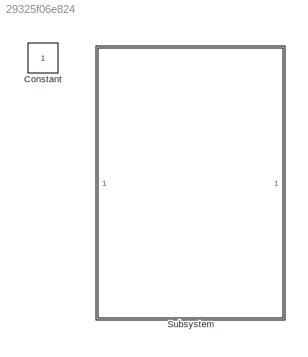
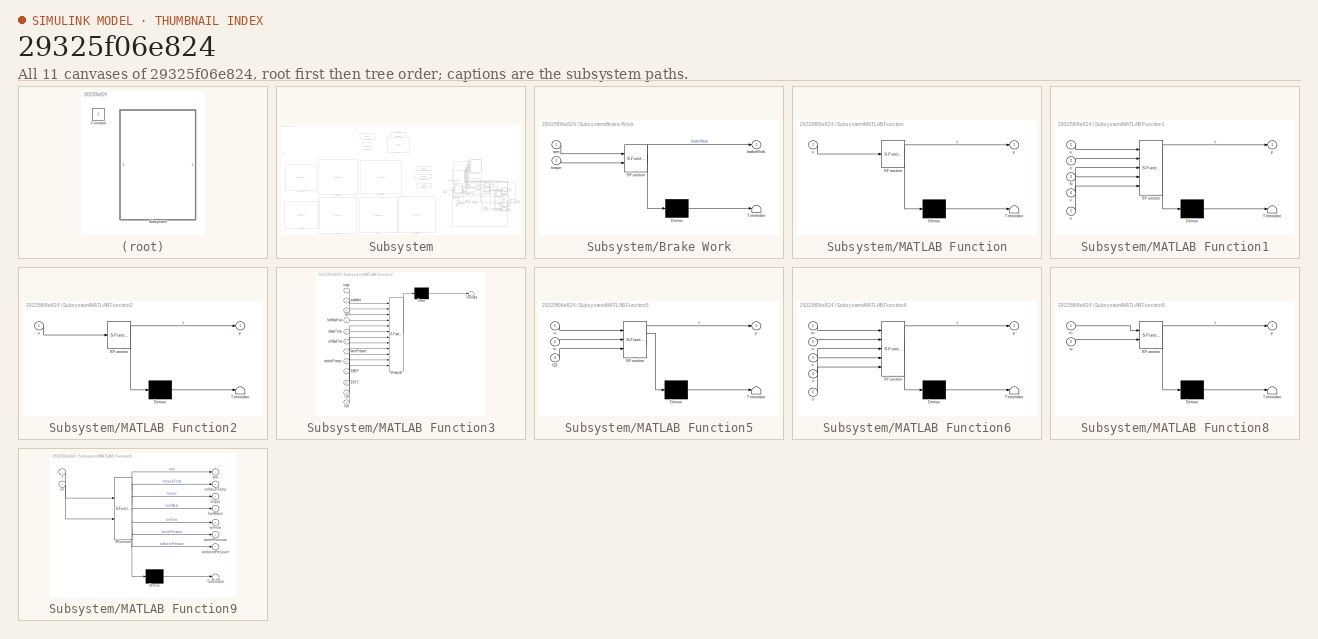
[diagram: thumbnail index - all 11 canvases of the model, root first then tree order]
MODEL slx_29325f06e824
KIND model
CONFIG AbsTol = auto
CONFIG EnableMultiTasking = off
CONFIG FixedStep = auto
CONFIG MaxStep = auto
CONFIG MinStep = auto
CONFIG RelTol = 1e-3
CONFIG SampleTimeConstraint = Unconstrained
CONFIG SolverName = VariableStepAuto
CONFIG StartTime = 0.0
CONFIG StopTime = inf
BLOCK [Constant] Constant
  IOType = siggen
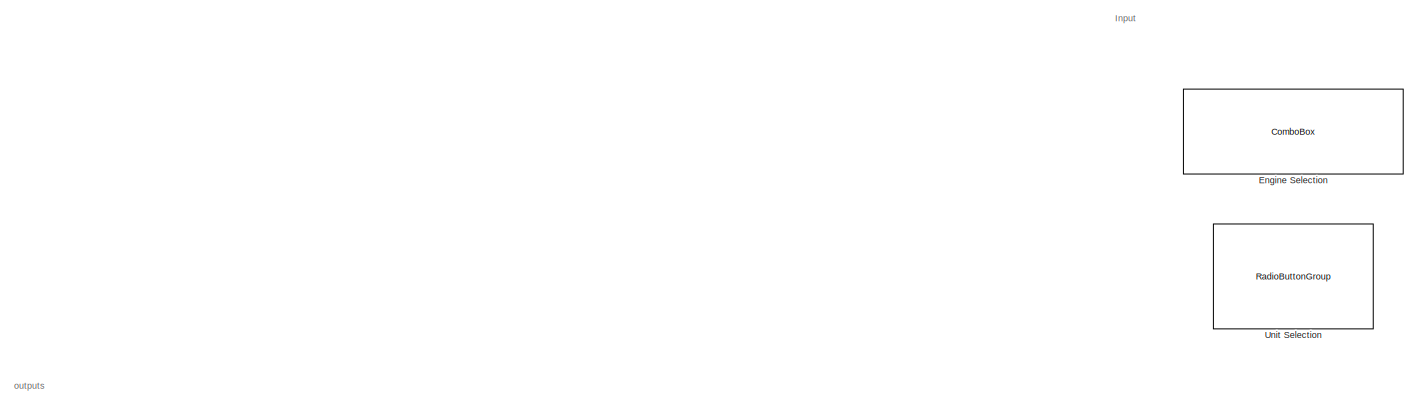
[diagram: Subsystem - part 1/6, top left region]
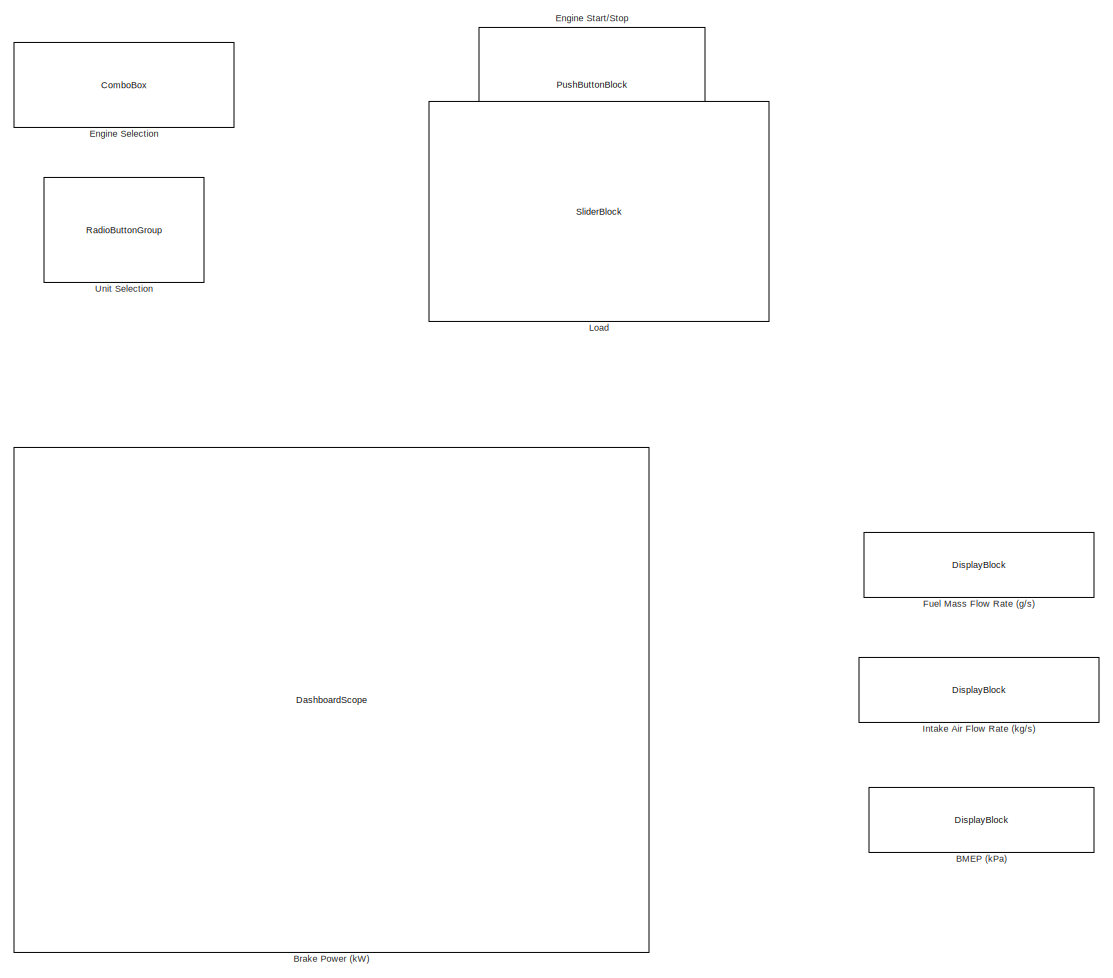
[diagram: Subsystem - part 2/6, central region]
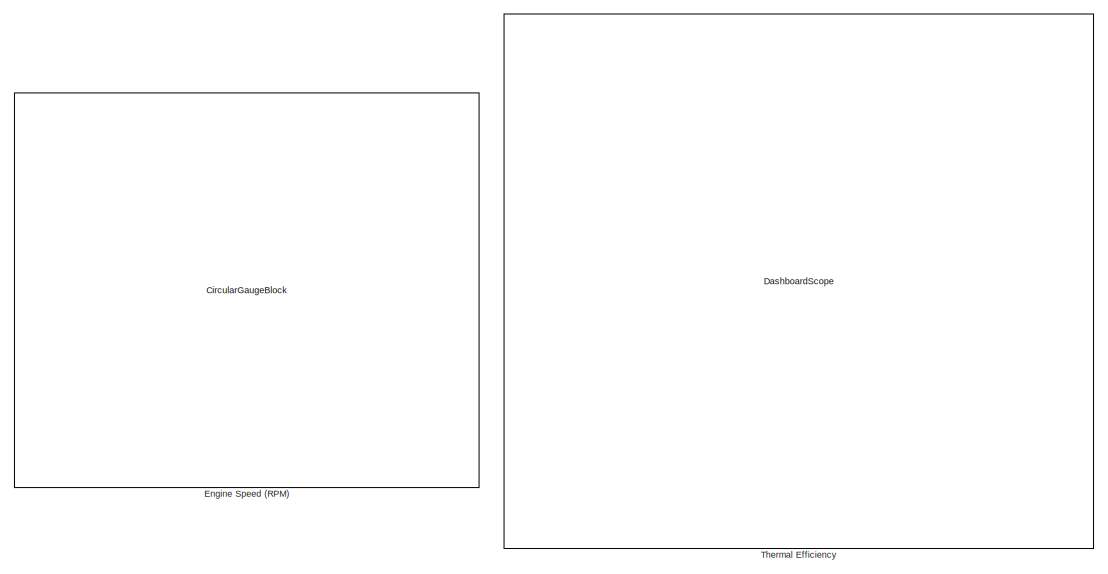
[diagram: Subsystem - part 3/6, middle left region]
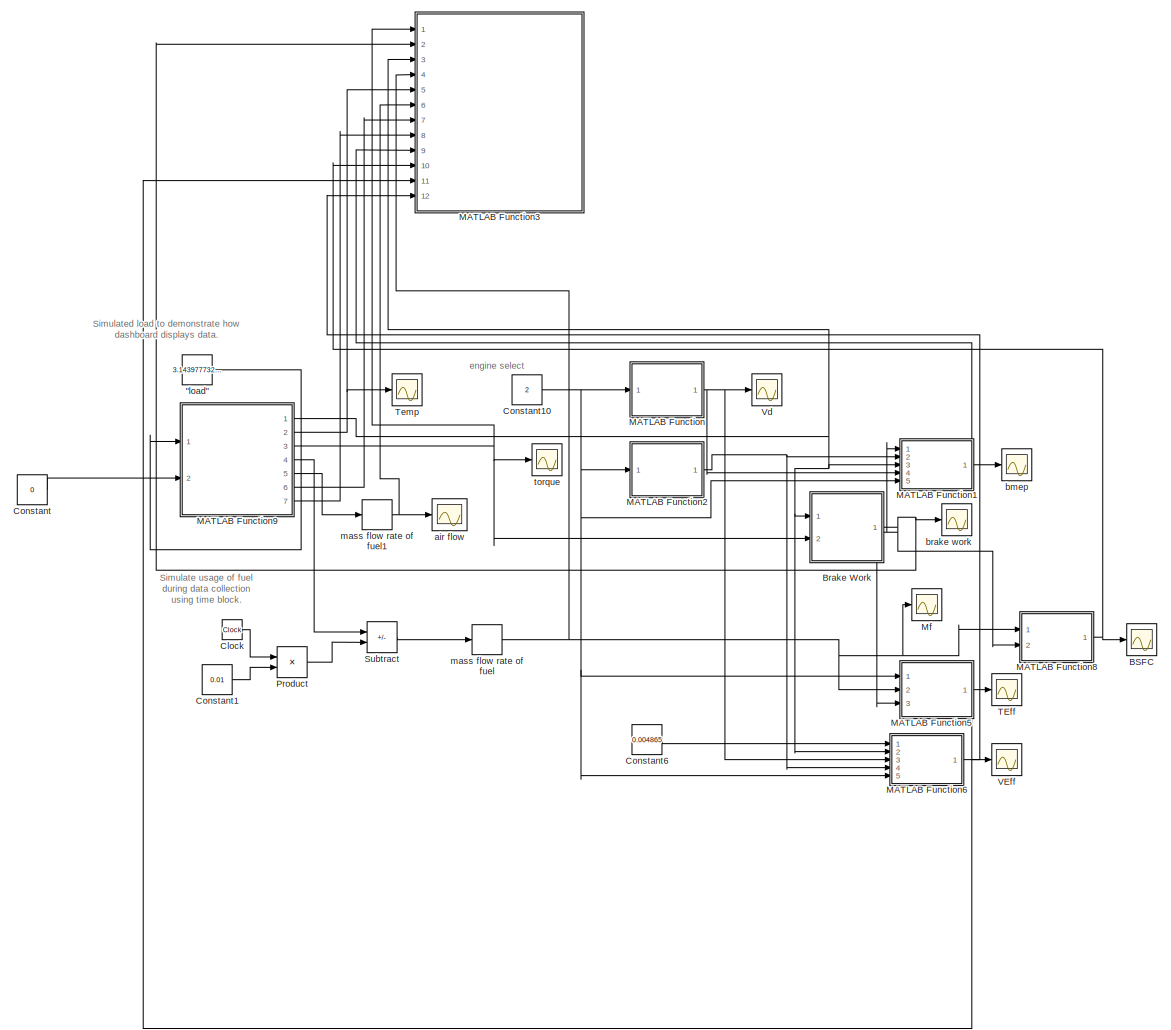
[diagram: Subsystem - part 4/6, middle right region]
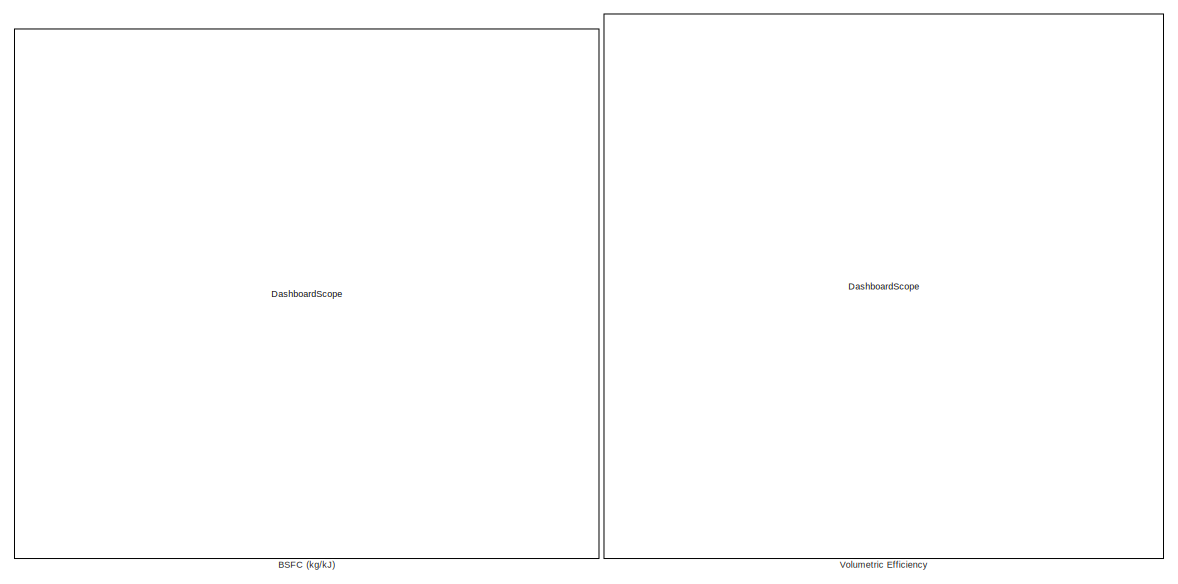
[diagram: Subsystem - part 5/6, bottom center region]
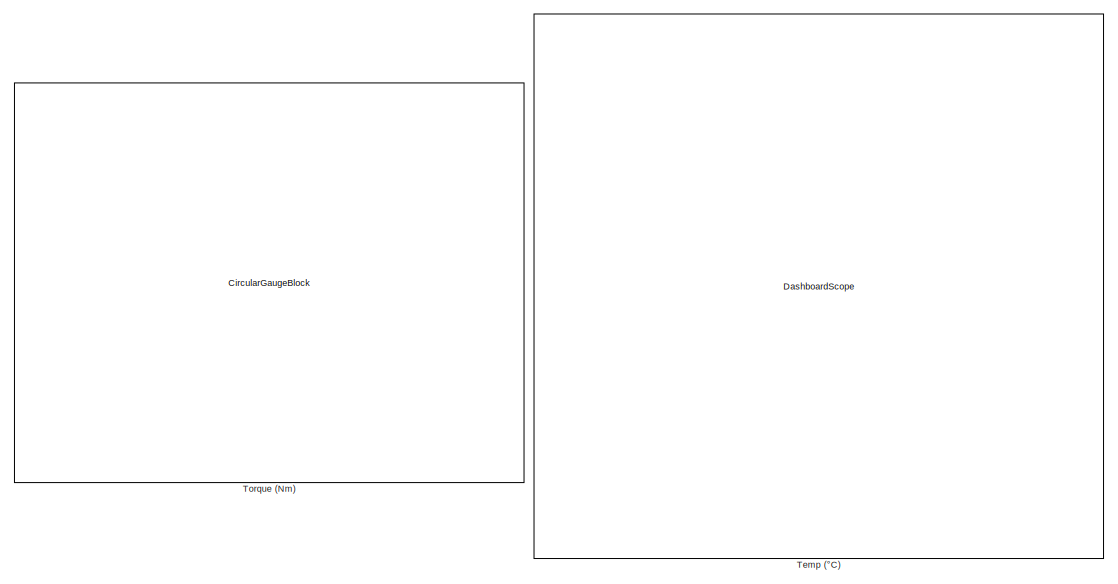
[diagram: Subsystem - part 6/6, bottom left region]
BLOCK [SubSystem] Subsystem
  Ports = []
  RequestExecContextInheritance = off
BLOCK [Constant] Subsystem/"load"
  Value = 3.143977732793522
BLOCK [DisplayBlock] Subsystem/BMEP (kPa)
  LabelPosition = Hide
  NameLocation = top
  Transparency = 1
BLOCK [Scope] Subsystem/BSFC
  Floating = off
  NumInputPorts = 1
  Ports = [1]
  ScopeSpecificationString = Simulink.scopes.TimeScopeBlockCfg('CurrentConfiguration', extmgr.ConfigurationSet(extmgr.Configuration('Core','General UI',true),extmgr.Configuration('Core','Source UI',true),extmgr.Configuration('Sources','WiredSimulink',true),extmgr.Configuration('Visuals','Time Domain',true,'SerializedDisplays',{struct('MinYLimReal','578.63218','MaxYLimReal','778.63218','YLabelReal','','MinYLimMag','578.63218',...<+1350ch>
BLOCK [DashboardScope] Subsystem/BSFC (kg//kJ)
  NameLocation = top
BLOCK [DashboardScope] Subsystem/Brake Power (kW)
  NameLocation = top
BLOCK [SubSystem] Subsystem/Brake Work
  ErrorFcn = Stateflow.Translate.translate
  PermitHierarchicalResolution = ExplicitOnly
  Ports = [2, 1]
  RequestExecContextInheritance = off
  SFBlockType = MATLAB Function
  TreatAsAtomicUnit = on
BLOCK [Demux] Subsystem/Brake Work/ Demux 
  Outputs = 1
  Ports = [1, 1]
BLOCK [S-Function] Subsystem/Brake Work/ SFunction 
  EnableBusSupport = on
  FunctionName = sf_sfun
  PortCounts = [2 2]
  Ports = [2, 2]
  SFcnIsStateOwnerBlock = off
  SFunctionDeploymentMode = off
  Tag = Stateflow S-Function 4
BLOCK [Terminator] Subsystem/Brake Work/ Terminator 
BLOCK [Outport] Subsystem/Brake Work/brakeWork
BLOCK [Inport] Subsystem/Brake Work/rpm
BLOCK [Inport] Subsystem/Brake Work/torque
  Port = 2
BLOCK [Clock] Subsystem/Clock
BLOCK [Constant] Subsystem/Constant
  Value = 0
BLOCK [Constant] Subsystem/Constant1
  Value = 0.01
BLOCK [Constant] Subsystem/Constant10
  Value = 2
BLOCK [Constant] Subsystem/Constant6
  Value = 0.004865
BLOCK [ComboBox] Subsystem/Engine Selection
  LabelPosition = Hide
  NameLocation = top
  SelectedLabel = Craftsman
BLOCK [CircularGaugeBlock] Subsystem/Engine Speed (RPM)
  LabelPosition = Hide
  NameLocation = top
  ScaleMax = 7000
BLOCK [PushButtonBlock] Subsystem/Engine Start//Stop
  ButtonText = Start/Stop
  ButtonType = Latch
  Icon = Engine
  IconAlignment = Center
  IconColor = On
  NameLocation = top
  OffValue = 0.000000
BLOCK [DisplayBlock] Subsystem/Fuel Mass Flow Rate (g//s)
  LabelPosition = Hide
  NameLocation = top
  Transparency = 1
BLOCK [DisplayBlock] Subsystem/Intake Air Flow Rate (kg//s)
  LabelPosition = Hide
  NameLocation = top
  Transparency = 1
BLOCK [SliderBlock] Subsystem/Load
  LabelPosition = Hide
BLOCK [SubSystem] Subsystem/MATLAB Function
  ErrorFcn = Stateflow.Translate.translate
  PermitHierarchicalResolution = ExplicitOnly
  Ports = [1, 1]
  RequestExecContextInheritance = off
  SFBlockType = MATLAB Function
  TreatAsAtomicUnit = on
BLOCK [Demux] Subsystem/MATLAB Function/ Demux 
  Outputs = 1
  Ports = [1, 1]
BLOCK [S-Function] Subsystem/MATLAB Function/ SFunction 
  EnableBusSupport = on
  FunctionName = sf_sfun
  PortCounts = [1 2]
  Ports = [1, 2]
  SFcnIsStateOwnerBlock = off
  SFunctionDeploymentMode = off
  Tag = Stateflow S-Function 2
BLOCK [Terminator] Subsystem/MATLAB Function/ Terminator 
BLOCK [Inport] Subsystem/MATLAB Function/u
BLOCK [Outport] Subsystem/MATLAB Function/y
BLOCK [SubSystem] Subsystem/MATLAB Function1
  ErrorFcn = Stateflow.Translate.translate
  PermitHierarchicalResolution = ExplicitOnly
  Ports = [5, 1]
  RequestExecContextInheritance = off
  SFBlockType = MATLAB Function
  TreatAsAtomicUnit = on
BLOCK [Demux] Subsystem/MATLAB Function1/ Demux 
  Outputs = 1
  Ports = [1, 1]
BLOCK [S-Function] Subsystem/MATLAB Function1/ SFunction 
  EnableBusSupport = on
  FunctionName = sf_sfun
  PortCounts = [5 2]
  Ports = [5, 2]
  SFcnIsStateOwnerBlock = off
  SFunctionDeploymentMode = off
  Tag = Stateflow S-Function 1
BLOCK [Terminator] Subsystem/MATLAB Function1/ Terminator 
BLOCK [Inport] Subsystem/MATLAB Function1/N
  Port = 3
BLOCK [Inport] Subsystem/MATLAB Function1/n
  Port = 2
BLOCK [Inport] Subsystem/MATLAB Function1/o
  Port = 5
BLOCK [Inport] Subsystem/MATLAB Function1/u
BLOCK [Inport] Subsystem/MATLAB Function1/v
  Port = 4
BLOCK [Outport] Subsystem/MATLAB Function1/y
BLOCK [SubSystem] Subsystem/MATLAB Function2
  ErrorFcn = Stateflow.Translate.translate
  PermitHierarchicalResolution = ExplicitOnly
  Ports = [1, 1]
  RequestExecContextInheritance = off
  SFBlockType = MATLAB Function
  TreatAsAtomicUnit = on
BLOCK [Demux] Subsystem/MATLAB Function2/ Demux 
  Outputs = 1
  Ports = [1, 1]
BLOCK [S-Function] Subsystem/MATLAB Function2/ SFunction 
  EnableBusSupport = on
  FunctionName = sf_sfun
  PortCounts = [1 2]
  Ports = [1, 2]
  SFcnIsStateOwnerBlock = off
  SFunctionDeploymentMode = off
  Tag = Stateflow S-Function 3
BLOCK [Terminator] Subsystem/MATLAB Function2/ Terminator 
BLOCK [Inport] Subsystem/MATLAB Function2/u
BLOCK [Outport] Subsystem/MATLAB Function2/y
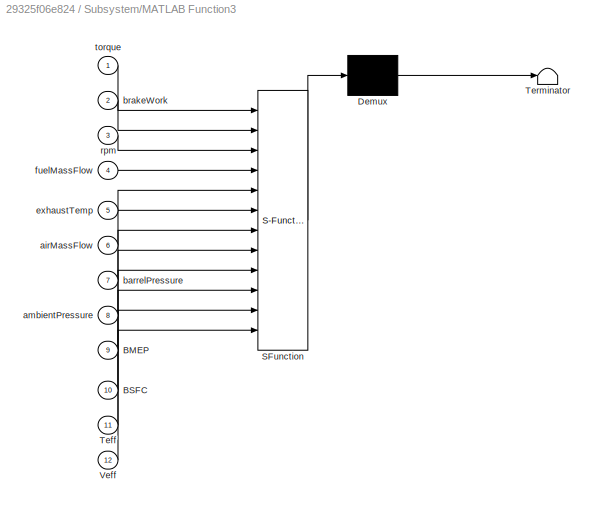
BLOCK [SubSystem] Subsystem/MATLAB Function3
  ErrorFcn = Stateflow.Translate.translate
  PermitHierarchicalResolution = ExplicitOnly
  Ports = [12]
  RequestExecContextInheritance = off
  SFBlockType = MATLAB Function
  SystemSampleTime = 1
  TreatAsAtomicUnit = on
BLOCK [Demux] Subsystem/MATLAB Function3/ Demux 
  Outputs = 1
  Ports = [1, 1]
BLOCK [S-Function] Subsystem/MATLAB Function3/ SFunction 
  EnableBusSupport = on
  FunctionName = sf_sfun
  PortCounts = [12 1]
  Ports = [12, 1]
  SFcnIsStateOwnerBlock = off
  SFunctionDeploymentMode = off
  Tag = Stateflow S-Function 11
BLOCK [Terminator] Subsystem/MATLAB Function3/ Terminator 
BLOCK [Inport] Subsystem/MATLAB Function3/BMEP
  Port = 9
BLOCK [Inport] Subsystem/MATLAB Function3/BSFC
  Port = 10
BLOCK [Inport] Subsystem/MATLAB Function3/Teff
  Port = 11
BLOCK [Inport] Subsystem/MATLAB Function3/Veff
  Port = 12
BLOCK [Inport] Subsystem/MATLAB Function3/airMassFlow
  Port = 6
BLOCK [Inport] Subsystem/MATLAB Function3/ambientPressure
  Port = 8
BLOCK [Inport] Subsystem/MATLAB Function3/barrelPressure
  Port = 7
BLOCK [Inport] Subsystem/MATLAB Function3/brakeWork
  Port = 2
BLOCK [Inport] Subsystem/MATLAB Function3/exhaustTemp
  Port = 5
BLOCK [Inport] Subsystem/MATLAB Function3/fuelMassFlow
  Port = 4
BLOCK [Inport] Subsystem/MATLAB Function3/rpm
  Port = 3
BLOCK [Inport] Subsystem/MATLAB Function3/torque
BLOCK [SubSystem] Subsystem/MATLAB Function5
  ErrorFcn = Stateflow.Translate.translate
  PermitHierarchicalResolution = ExplicitOnly
  Ports = [3, 1]
  RequestExecContextInheritance = off
  SFBlockType = MATLAB Function
  TreatAsAtomicUnit = on
BLOCK [Demux] Subsystem/MATLAB Function5/ Demux 
  Outputs = 1
  Ports = [1, 1]
BLOCK [S-Function] Subsystem/MATLAB Function5/ SFunction 
  EnableBusSupport = on
  FunctionName = sf_sfun
  PortCounts = [3 2]
  Ports = [3, 2]
  SFcnIsStateOwnerBlock = off
  SFunctionDeploymentMode = off
  Tag = Stateflow S-Function 6
BLOCK [Terminator] Subsystem/MATLAB Function5/ Terminator 
BLOCK [Inport] Subsystem/MATLAB Function5/Q2
  Port = 3
BLOCK [Inport] Subsystem/MATLAB Function5/m
  Port = 2
BLOCK [Inport] Subsystem/MATLAB Function5/u
BLOCK [Outport] Subsystem/MATLAB Function5/y
BLOCK [SubSystem] Subsystem/MATLAB Function6
  ErrorFcn = Stateflow.Translate.translate
  PermitHierarchicalResolution = ExplicitOnly
  Ports = [5, 1]
  RequestExecContextInheritance = off
  SFBlockType = MATLAB Function
  TreatAsAtomicUnit = on
BLOCK [Demux] Subsystem/MATLAB Function6/ Demux 
  Outputs = 1
  Ports = [1, 1]
BLOCK [S-Function] Subsystem/MATLAB Function6/ SFunction 
  EnableBusSupport = on
  FunctionName = sf_sfun
  PortCounts = [5 2]
  Ports = [5, 2]
  SFcnIsStateOwnerBlock = off
  SFunctionDeploymentMode = off
  Tag = Stateflow S-Function 7
BLOCK [Terminator] Subsystem/MATLAB Function6/ Terminator 
BLOCK [Inport] Subsystem/MATLAB Function6/m
BLOCK [Inport] Subsystem/MATLAB Function6/n
  Port = 2
BLOCK [Inport] Subsystem/MATLAB Function6/o
  Port = 5
BLOCK [Inport] Subsystem/MATLAB Function6/s
  Port = 4
BLOCK [Inport] Subsystem/MATLAB Function6/v
  Port = 3
BLOCK [Outport] Subsystem/MATLAB Function6/y
BLOCK [SubSystem] Subsystem/MATLAB Function8
  ErrorFcn = Stateflow.Translate.translate
  PermitHierarchicalResolution = ExplicitOnly
  Ports = [2, 1]
  RequestExecContextInheritance = off
  SFBlockType = MATLAB Function
  TreatAsAtomicUnit = on
BLOCK [Demux] Subsystem/MATLAB Function8/ Demux 
  Outputs = 1
  Ports = [1, 1]
BLOCK [S-Function] Subsystem/MATLAB Function8/ SFunction 
  EnableBusSupport = on
  FunctionName = sf_sfun
  PortCounts = [2 2]
  Ports = [2, 2]
  SFcnIsStateOwnerBlock = off
  SFunctionDeploymentMode = off
  Tag = Stateflow S-Function 9
BLOCK [Terminator] Subsystem/MATLAB Function8/ Terminator 
BLOCK [Inport] Subsystem/MATLAB Function8/m
BLOCK [Inport] Subsystem/MATLAB Function8/w
  Port = 2
BLOCK [Outport] Subsystem/MATLAB Function8/y
BLOCK [SubSystem] Subsystem/MATLAB Function9
  ErrorFcn = Stateflow.Translate.translate
  PermitHierarchicalResolution = ExplicitOnly
  Ports = [2, 7]
  RequestExecContextInheritance = off
  SFBlockType = MATLAB Function
  TreatAsAtomicUnit = on
BLOCK [Demux] Subsystem/MATLAB Function9/ Demux 
  Outputs = 1
  Ports = [1, 1]
BLOCK [S-Function] Subsystem/MATLAB Function9/ SFunction 
  EnableBusSupport = on
  FunctionName = sf_sfun
  PortCounts = [2 8]
  Ports = [2, 8]
  SFcnIsStateOwnerBlock = off
  SFunctionDeploymentMode = off
  Tag = Stateflow S-Function 10
BLOCK [Terminator] Subsystem/MATLAB Function9/ Terminator 
BLOCK [Outport] Subsystem/MATLAB Function9/airFlow
  Port = 5
BLOCK [Outport] Subsystem/MATLAB Function9/ambientPressure
  Port = 7
BLOCK [Outport] Subsystem/MATLAB Function9/barrelPressure
  Port = 6
BLOCK [Outport] Subsystem/MATLAB Function9/exhaustTemp
  Port = 2
BLOCK [Outport] Subsystem/MATLAB Function9/fuelMass
  Port = 4
BLOCK [Inport] Subsystem/MATLAB Function9/on
  Port = 2
BLOCK [Outport] Subsystem/MATLAB Function9/rpm
BLOCK [Inport] Subsystem/MATLAB Function9/t
BLOCK [Outport] Subsystem/MATLAB Function9/torque
  Port = 3
BLOCK [Scope] Subsystem/Mf
  Floating = off
  NumInputPorts = 1
  Ports = [1]
  ScopeSpecificationString = Simulink.scopes.TimeScopeBlockCfg('CurrentConfiguration', extmgr.ConfigurationSet(extmgr.Configuration('Core','General UI',true),extmgr.Configuration('Core','Source UI',true),extmgr.Configuration('Sources','WiredSimulink',true,'DataLoggingVariableName','ScopeData4'),extmgr.Configuration('Visuals','Time Domain',true,'SerializedDisplays',{struct('MinYLimReal','-0.01125','MaxYLimReal','0.00125','YLab...<+1381ch>
BLOCK [Product] Subsystem/Product
  Ports = [2, 1]
BLOCK [Sum] Subsystem/Subtract
  IconShape = rectangular
  Inputs = +-
  Ports = [2, 1]
BLOCK [Scope] Subsystem/TEff
  Floating = off
  NumInputPorts = 1
  Ports = [1]
  ScopeSpecificationString = Simulink.scopes.TimeScopeBlockCfg('CurrentConfiguration', extmgr.ConfigurationSet(extmgr.Configuration('Core','General UI',true),extmgr.Configuration('Core','Source UI',true),extmgr.Configuration('Sources','WiredSimulink',true,'DataLoggingVariableName','ScopeData5'),extmgr.Configuration('Visuals','Time Domain',true,'SerializedDisplays',{struct('MinYLimReal','4.91849','MaxYLimReal','6.91849','YLabe...<+1373ch>
BLOCK [Scope] Subsystem/Temp
  Floating = off
  NumInputPorts = 1
  Ports = [1]
  ScopeSpecificationString = Simulink.scopes.TimeScopeBlockCfg('CurrentConfiguration', extmgr.ConfigurationSet(extmgr.Configuration('Core','General UI',true),extmgr.Configuration('Core','Source UI',true),extmgr.Configuration('Sources','WiredSimulink',true,'DataLoggingVariableName','ScopeData1'),extmgr.Configuration('Visuals','Time Domain',true),extmgr.Configuration('Tools','Plot Navigation',true),extmgr.Configuration('Tools',...<+40ch>
BLOCK [DashboardScope] Subsystem/Temp (°C)
  NameLocation = top
BLOCK [DashboardScope] Subsystem/Thermal Efficiency
  NameLocation = top
BLOCK [CircularGaugeBlock] Subsystem/Torque (Nm)
  LabelPosition = Hide
  NameLocation = top
  TickInterval = 5
BLOCK [RadioButtonGroup] Subsystem/Unit Selection
  ButtonGroupName = Units
  LabelPosition = Hide
  SelectedLabel = Metric
BLOCK [Scope] Subsystem/VEff
  Floating = off
  NumInputPorts = 1
  Ports = [1]
  ScopeSpecificationString = Simulink.scopes.TimeScopeBlockCfg('CurrentConfiguration', extmgr.ConfigurationSet(extmgr.Configuration('Core','General UI',true),extmgr.Configuration('Core','Source UI',true),extmgr.Configuration('Sources','WiredSimulink',true,'DataLoggingVariableName','ScopeData6'),extmgr.Configuration('Visuals','Time Domain',true,'SerializedDisplays',{struct('MinYLimReal','1.73245','MaxYLimReal','3.73245','YLabe...<+1373ch>
BLOCK [Scope] Subsystem/Vd
  Floating = off
  NumInputPorts = 1
  Ports = [1]
  ScopeSpecificationString = Simulink.scopes.TimeScopeBlockCfg('CurrentConfiguration', extmgr.ConfigurationSet(extmgr.Configuration('Core','General UI',true),extmgr.Configuration('Core','Source UI',true),extmgr.Configuration('Sources','WiredSimulink',true,'DataLoggingVariableName','ScopeData1'),extmgr.Configuration('Visuals','Time Domain',true,'SerializedDisplays',{struct('MinYLimReal','0.0002','MaxYLimReal','0.0004','YLabelR...<+1364ch>
BLOCK [DashboardScope] Subsystem/Volumetric Efficiency
  NameLocation = top
BLOCK [Scope] Subsystem/air flow
  Floating = off
  NumInputPorts = 1
  Ports = [1]
  ScopeSpecificationString = Simulink.scopes.TimeScopeBlockCfg('CurrentConfiguration', extmgr.ConfigurationSet(extmgr.Configuration('Core','General UI',true),extmgr.Configuration('Core','Source UI',true),extmgr.Configuration('Sources','WiredSimulink',true,'DataLoggingVariableName','ScopeData3'),extmgr.Configuration('Visuals','Time Domain',true,'SerializedDisplays',{struct('MinYLimReal','578.63218','MaxYLimReal','778.63218','Y...<+1389ch>
BLOCK [Scope] Subsystem/bmep
  Floating = off
  NumInputPorts = 1
  Ports = [1]
  ScopeSpecificationString = Simulink.scopes.TimeScopeBlockCfg('CurrentConfiguration', extmgr.ConfigurationSet(extmgr.Configuration('Core','General UI',true),extmgr.Configuration('Core','Source UI',true),extmgr.Configuration('Sources','WiredSimulink',true,'DataLoggingVariableName','ScopeData2'),extmgr.Configuration('Visuals','Time Domain',true,'SerializedDisplays',{struct('MinYLimReal','85.86103','MaxYLimReal','105.86103','YL...<+1385ch>
BLOCK [Scope] Subsystem/brake work
  Floating = off
  NumInputPorts = 1
  Ports = [1]
  ScopeSpecificationString = Simulink.scopes.TimeScopeBlockCfg('CurrentConfiguration', extmgr.ConfigurationSet(extmgr.Configuration('Core','General UI',true),extmgr.Configuration('Core','Source UI',true),extmgr.Configuration('Sources','WiredSimulink',true,'DataLoggingVariableName','ScopeData3'),extmgr.Configuration('Visuals','Time Domain',true,'SerializedDisplays',{struct('MinYLimReal','578.63218','MaxYLimReal','778.63218','Y...<+1389ch>
BLOCK [Derivative] Subsystem/mass flow rate of fuel
BLOCK [Derivative] Subsystem/mass flow rate of fuel1
BLOCK [Scope] Subsystem/torque
  Floating = off
  NumInputPorts = 1
  Ports = [1]
  ScopeSpecificationString = Simulink.scopes.TimeScopeBlockCfg('CurrentConfiguration', extmgr.ConfigurationSet(extmgr.Configuration('Core','General UI',true),extmgr.Configuration('Core','Source UI',true),extmgr.Configuration('Sources','WiredSimulink',true,'DataLoggingVariableName','ScopeData2'),extmgr.Configuration('Visuals','Time Domain',true,'SerializedDisplays',{struct('MinYLimReal','578.63218','MaxYLimReal','778.63218','Y...<+1389ch>
ANNOTATION Subsystem: Simulate usage of fuel during data collection using time block.
ANNOTATION Subsystem: Input
ANNOTATION Subsystem: Simulated load to demonstrate how dashboard displays data.
ANNOTATION Subsystem: engine select
ANNOTATION Subsystem: outputs
LINE Subsystem/"load":1 -> Subsystem/MATLAB Function9:1
NET Subsystem/Brake Work:1 -> Subsystem/MATLAB Function1:1, Subsystem/MATLAB Function3:2, Subsystem/MATLAB Function5:3, Subsystem/MATLAB Function8:2, Subsystem/brake work:1
LINE Subsystem/Clock:1 -> Subsystem/Product:1
NET Subsystem/Constant10:1 -> Subsystem/MATLAB Function1:5, Subsystem/MATLAB Function2:1, Subsystem/MATLAB Function5:1, Subsystem/MATLAB Function6:5, Subsystem/MATLAB Function:1
LINE Subsystem/Constant1:1 -> Subsystem/Product:2
LINE Subsystem/Constant6:1 -> Subsystem/MATLAB Function6:1
LINE Subsystem/Constant:1 -> Subsystem/MATLAB Function9:2
NET Subsystem/MATLAB Function1:1 -> Subsystem/MATLAB Function3:9, Subsystem/bmep:1
NET Subsystem/MATLAB Function2:1 -> Subsystem/MATLAB Function1:2, Subsystem/MATLAB Function6:4
NET Subsystem/MATLAB Function5:1 -> Subsystem/MATLAB Function3:11, Subsystem/TEff:1
NET Subsystem/MATLAB Function6:1 -> Subsystem/MATLAB Function3:12, Subsystem/VEff:1
NET Subsystem/MATLAB Function8:1 -> Subsystem/BSFC:1, Subsystem/MATLAB Function3:10
NET Subsystem/MATLAB Function9:1 -> Subsystem/Brake Work:1, Subsystem/MATLAB Function1:3, Subsystem/MATLAB Function3:3, Subsystem/MATLAB Function6:2
NET Subsystem/MATLAB Function9:2 -> Subsystem/MATLAB Function3:5, Subsystem/Temp:1
NET Subsystem/MATLAB Function9:3 -> Subsystem/Brake Work:2, Subsystem/MATLAB Function3:1, Subsystem/torque:1
LINE Subsystem/MATLAB Function9:4 -> Subsystem/Subtract:1
LINE Subsystem/MATLAB Function9:5 -> Subsystem/mass flow rate of fuel1:1
LINE Subsystem/MATLAB Function9:6 -> Subsystem/MATLAB Function3:7
LINE Subsystem/MATLAB Function9:7 -> Subsystem/MATLAB Function3:8
NET Subsystem/MATLAB Function:1 -> Subsystem/MATLAB Function1:4, Subsystem/MATLAB Function6:3, Subsystem/Vd:1
LINE Subsystem/Product:1 -> Subsystem/Subtract:2
LINE Subsystem/Subtract:1 -> Subsystem/mass flow rate of fuel:1
NET Subsystem/mass flow rate of fuel1:1 -> Subsystem/MATLAB Function3:6, Subsystem/air flow:1
NET Subsystem/mass flow rate of fuel:1 -> Subsystem/MATLAB Function3:4, Subsystem/MATLAB Function5:2, Subsystem/MATLAB Function8:1, Subsystem/Mf:1
note: NET lines group one-source signal fan-out (src -> all destinations, sorted); 1:1 wires keep LINE
CHART Subsystem/MATLAB Function3 states=1 transitions=1
  STATE_LABEL 'eML_blk_kernel()'
  STATE_LABEL "SCRIPT:\n% log file generation - currently overwrites each run\n% \\r\\n used for windows line termination style CRLF - switch to just \\n if\n% using unix like system\nfunction fileOutput(torque,brakeWork,rpm,fuelMassFlow,exhaustTemp,airMassFlow,barrelPressure,ambientPressure,BMEP,BSFC,Teff,Veff)\n\nfile = fopen('~/output-file.txt','w');\nfprintf(file,'%.3f,%.3f,%.3f,%.3f,%.3f,%.3f,%.3f,%.3f,%.3f,%.3f,%.3f...<+140ch>"
CHART Subsystem/MATLAB Function1 states=1 transitions=1
  STATE_LABEL 'eML_blk_kernel()'
  STATE_LABEL 'SCRIPT:\nfunction y = fcn(u, n, N,  v, o)\nif(o == 1 || o == 2 || o == 5 || o ==6)\n    y = ((u/((N/60)/n))/v)/1000;\nelseif(o==3)\n     y = ((u/((N/60)/n))/(v*4))/1000;\nelse\n     y = ((u/((N/60)/n))/(v*6))/1000;\nend\n'
CHART Subsystem/MATLAB Function states=1 transitions=1
  STATE_LABEL 'eML_blk_kernel()'
  STATE_LABEL 'SCRIPT:\nfunction y = fcn(u)\ndata = [0.000296 0.000196 0.000475 000.0004667 0.000429 0.000225];\n\ny = data(1,u);\n'
CHART Subsystem/MATLAB Function2 states=1 transitions=1
  STATE_LABEL 'eML_blk_kernel()'
  STATE_LABEL 'SCRIPT:\nfunction y = fcn(u)\ndata = [4  4  4  4 4 4];\n\ny = data(1,u);\n'
CHART Subsystem/Brake Work states=1 transitions=1
  STATE_LABEL 'eML_blk_kernel()'
  STATE_LABEL 'SCRIPT:\nfunction brakeWork = fcn(rpm,torque)\nbrakeWork = 2 * pi * (rpm/60.0) * torque;\n\n'
CHART Subsystem/MATLAB Function5 states=1 transitions=1
  STATE_LABEL 'eML_blk_kernel()'
  STATE_LABEL 'SCRIPT:\nfunction y = fcn(u, m, Q2)\ndata = [47.3e6 44.4e6];\nQ1 = 0;\nif(u == 3)\n    Q1 = m * data(1, 2);\n\nelse\n    Q1 = m * data(1,1);\nend\n\ny = (Q2/Q1) * 100;'
CHART Subsystem/MATLAB Function6 states=1 transitions=1
  STATE_LABEL 'eML_blk_kernel()'
  STATE_LABEL 'SCRIPT:\nfunction y = fcn(m, n, v, s,o)\nif(o == 1 || o == 2 || o == 5 || o == 6)\n    y = ((s*m)/(1.205*v*(n/60)));\nelseif (o == 3)\n    y = ((s*m)/(1.205*(v*4)*(n/60)));\nelse\n    y = ((s*m)/(1.205*(v*6)*(n/60)));\nend\n'
CHART Subsystem/MATLAB Function8 states=1 transitions=1
  STATE_LABEL 'eML_blk_kernel()'
  STATE_LABEL 'SCRIPT:\nfunction y = fcn(m,w)\n\ny = m./w;\n'
CHART Subsystem/MATLAB Function9 states=1 transitions=1
  STATE_LABEL 'eML_blk_kernel()'
  STATE_LABEL 'SCRIPT:\n% function to generate simulated engine values. Takes two values:\n%   on: boolean on or off switch to start data collection.\n%   t: float value to scale the simulated data, tied to a slider.\n%\n% returns:\n%\n%   rpm: engine     speed rev per minute\n%   exhaustTemp:    exhaust temperature in celsius\n%   torque:         torque in Newton-meters\n%   torqueMeasured: boolean - true if torque is me...<+631ch>'
CHART  states=0 transitions=0
CHART  states=0 transitions=0
CHART  states=0 transitions=0
CHART  states=0 transitions=0
CHART  states=0 transitions=0
CHART  states=0 transitions=0
CHART  states=0 transitions=0
CHART  states=0 transitions=0
CHART  states=0 transitions=0
